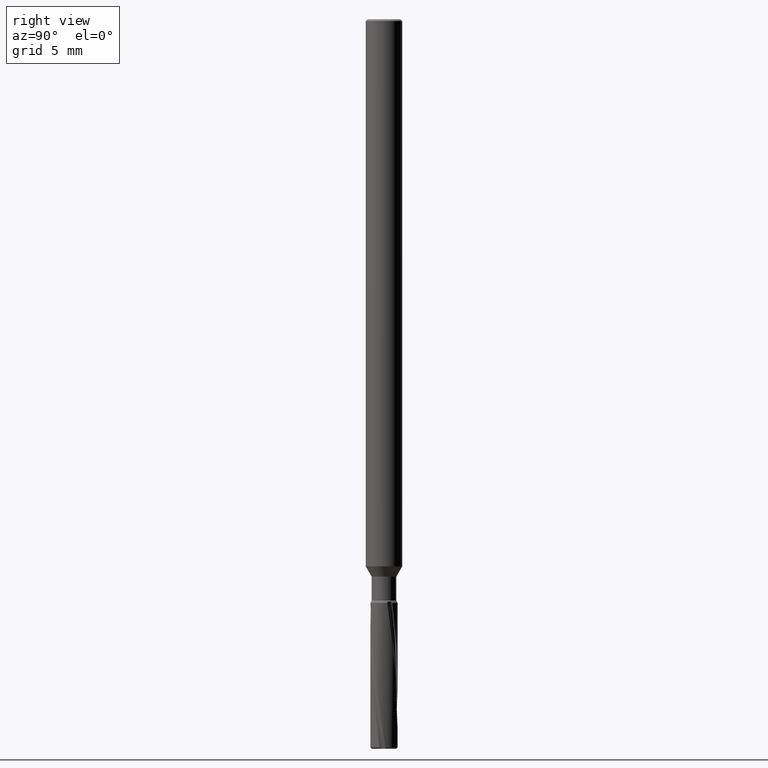
[diagram: clean part render]
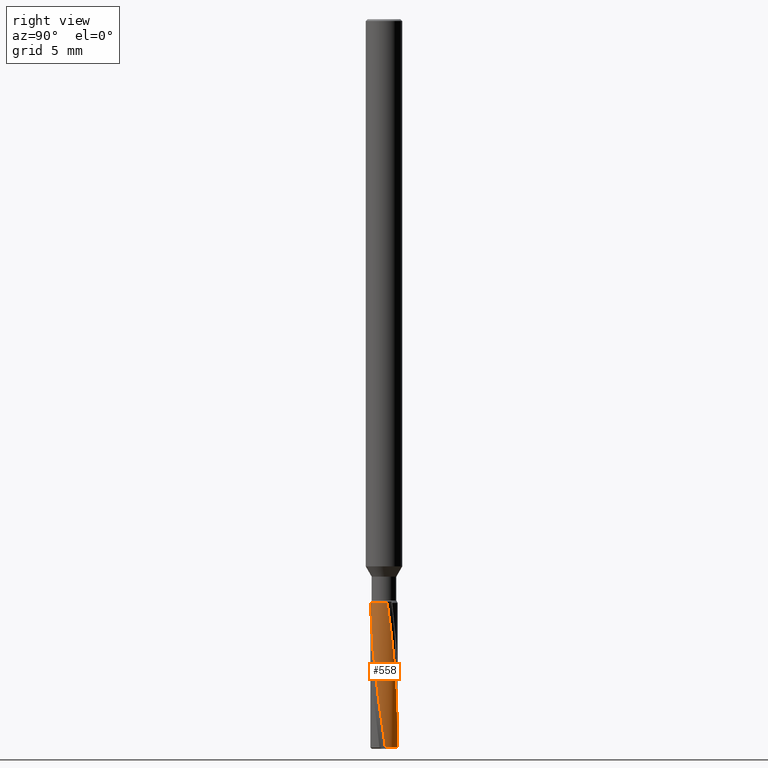
[diagram: same view with one face highlighted and labeled with its STEP entity id]
A machine part, right view. The second image highlights one B-rep face of the part: STEP entity #558.
In plain terms, the highlighted cylindrical surface (edge-blend (fillet) strip) has radius 0.75 mm, axis along (-0, -0, 1).
Its self-contained STEP definition (entity closure, byte-faithful):
#552=EDGE_CURVE('',#930,#734,#1363,.T.);
#558=ADVANCED_FACE('',(#1369),#1370,.T.);
#592=EDGE_CURVE('',#604,#882,#1407,.T.);
#604=VERTEX_POINT('',#1421);
#628=EDGE_CURVE('',#882,#734,#1445,.T.);
#734=VERTEX_POINT('',#1558);
#882=VERTEX_POINT('',#1722);
#910=VERTEX_POINT('',#1751);
#930=VERTEX_POINT('',#1771);
#1010=EDGE_CURVE('',#910,#930,#1862,.T.);
#1116=EDGE_CURVE('',#910,#604,#1977,.T.);
#1363=CIRCLE('',#2691,0.75);
#1369=FACE_OUTER_BOUND('',#2701,.T.);
#1370=CYLINDRICAL_SURFACE('',#2702,0.75);
#1407=CIRCLE('',#2861,0.75);
#1421=CARTESIAN_POINT('',(0.729201049289145,0.175401909099101,-32.0));
#1445=B_SPLINE_CURVE_WITH_KNOTS('',3,(#3111,#3112,#3113,#3114,#3115,#3116,#3117,#3118,#3119,#3120,#3121,#3122,#3123,#3124),.UNSPECIFIED.,.F.,.F.,(4,2,2,2,2,2,4),(0.0,0.576190026889931,1.46914404750976,3.29388080333116,5.79535650516238,6.4170231208853,8.27366822840326),.UNSPECIFIED.);
#1558=CARTESIAN_POINT('',(0.74657543166896,0.071589977149784,-39.925));
#1722=CARTESIAN_POINT('',(0.0897770373157872,-0.7446073351578,-32.0));
#1751=CARTESIAN_POINT('',(3.45654796989669E-014,0.75,-38.9559732105318));
#1771=CARTESIAN_POINT('',(-1.01213170985346E-016,0.75,-39.925));
#1862=LINE('',#5294,#5295);
#1977=B_SPLINE_CURVE_WITH_KNOTS('',3,(#5670,#5671,#5672,#5673,#5674,#5675,#5676,#5677,#5678,#5679,#5680,#5681,#5682,#5683,#5684,#5685),.UNSPECIFIED.,.F.,.F.,(4,2,2,2,2,2,2,4),(0.0,1.12016542445099,1.682345682766,3.93333449692145,5.07927398953718,6.43292412692839,8.11836866848466,8.53244720620236),.UNSPECIFIED.);
#2691=AXIS2_PLACEMENT_3D('',#6522,#6523,#6524);
#2701=EDGE_LOOP('',(#6528,#6529,#6530,#6531,#6532));
#2702=AXIS2_PLACEMENT_3D('',#6533,#6534,#6535);
#2861=AXIS2_PLACEMENT_3D('',#6580,#6581,#6582);
#3111=CARTESIAN_POINT('',(0.0897770373157859,-0.7446073351578,-32.0));
#3112=CARTESIAN_POINT('',(0.126450879409929,-0.740185583269603,-32.1884775977947));
#3113=CARTESIAN_POINT('',(0.159619523780436,-0.733446644201717,-32.3767859878365));
#3114=CARTESIAN_POINT('',(0.234557711702082,-0.713931356615276,-32.8627400078365));
#3115=CARTESIAN_POINT('',(0.257907129519437,-0.705272572052595,-33.0813570194204));
#3116=CARTESIAN_POINT('',(0.363705733621198,-0.660432228558461,-33.9353677435948));
#3117=CARTESIAN_POINT('',(0.430163073388345,-0.62010872517977,-34.419547586745));
#3118=CARTESIAN_POINT('',(0.580331263601265,-0.488888269014343,-35.8022130489788));
#3119=CARTESIAN_POINT('',(0.652436032203188,-0.388861865385298,-36.6370115357195));
#3120=CARTESIAN_POINT('',(0.707829278154181,-0.249732344046369,-37.6684701259313));
#3121=CARTESIAN_POINT('',(0.717161622399212,-0.221488977729706,-37.8732932053152));
#3122=CARTESIAN_POINT('',(0.747538788660717,-0.107324490306255,-38.6919452657151));
#3123=CARTESIAN_POINT('',(0.755136065310579,-0.0176845136491095,-39.3101530679733));
#3124=CARTESIAN_POINT('',(0.746575431668961,0.0715899771497845,-39.925));
#5294=CARTESIAN_POINT('',(-9.14461874446351E-017,0.75,-35.9625));
#5295=VECTOR('',#7035,1.0);
#5670=CARTESIAN_POINT('',(-0.138754256009318,0.737053089294998,-39.925));
#5671=CARTESIAN_POINT('',(-0.0863821821208409,0.746912417277751,-39.555434156537));
#5672=CARTESIAN_POINT('',(-0.0330934593268011,0.751166342057475,-39.1850455292405));
#5673=CARTESIAN_POINT('',(0.0469998509265815,0.749004583388257,-38.6304284459189));
#5674=CARTESIAN_POINT('',(0.0736914703060691,0.74685306332655,-38.4463473240527));
#5675=CARTESIAN_POINT('',(0.206751725753323,0.728900449038216,-37.520345984559));
#5676=CARTESIAN_POINT('',(0.308757139570586,0.691850143345253,-36.7837387215044));
#5677=CARTESIAN_POINT('',(0.445649132943861,0.605701274975184,-35.6655300665601));
#5678=CARTESIAN_POINT('',(0.488436783937631,0.571744665591738,-35.2931153912843));
#5679=CARTESIAN_POINT('',(0.57288621004236,0.48829817894273,-34.4743360231167));
#5680=CARTESIAN_POINT('',(0.611036630791157,0.439226910321212,-34.0314762620937));
#5681=CARTESIAN_POINT('',(0.682225749747307,0.320838796111507,-33.0813650455464));
#5682=CARTESIAN_POINT('',(0.703081368247756,0.267222862843999,-32.7588222085835));
#5683=CARTESIAN_POINT('',(0.723164662459529,0.199318631125376,-32.2146825503817));
#5684=CARTESIAN_POINT('',(0.726462166033145,0.186788310503816,-32.1075018562724));
#5685=CARTESIAN_POINT('',(0.729201049289145,0.175401909099102,-32.0));
#6522=CARTESIAN_POINT('',(0.0,0.0,-39.925));
#6523=DIRECTION('',(0.0,0.0,-1.0));
#6524=DIRECTION('',(0.0,1.0,0.0));
#6528=ORIENTED_EDGE('',*,*,#1010,.F.);
#6529=ORIENTED_EDGE('',*,*,#1116,.T.);
#6530=ORIENTED_EDGE('',*,*,#592,.T.);
#6531=ORIENTED_EDGE('',*,*,#628,.T.);
#6532=ORIENTED_EDGE('',*,*,#552,.F.);
#6533=CARTESIAN_POINT('',(0.0,0.0,-35.9625));
#6534=DIRECTION('',(-0.0,-0.0,1.0));
#6535=DIRECTION('',(0.0,1.0,0.0));
#6580=CARTESIAN_POINT('',(0.0,0.0,-32.0));
#6581=DIRECTION('',(0.0,0.0,-1.0));
#6582=DIRECTION('',(0.0,1.0,0.0));
#7035=DIRECTION('',(0.0,0.0,-1.0));